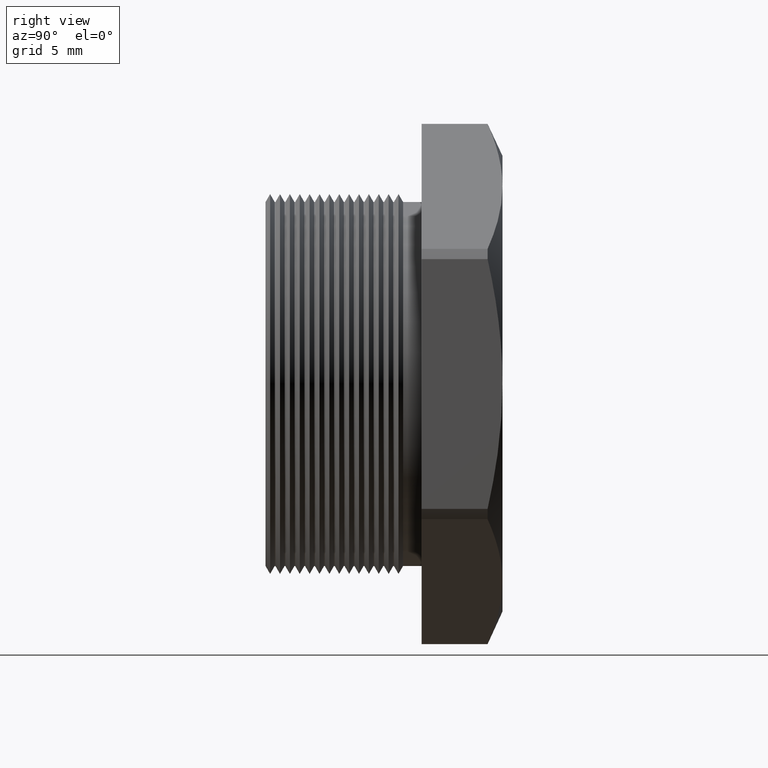
[diagram: clean part render]
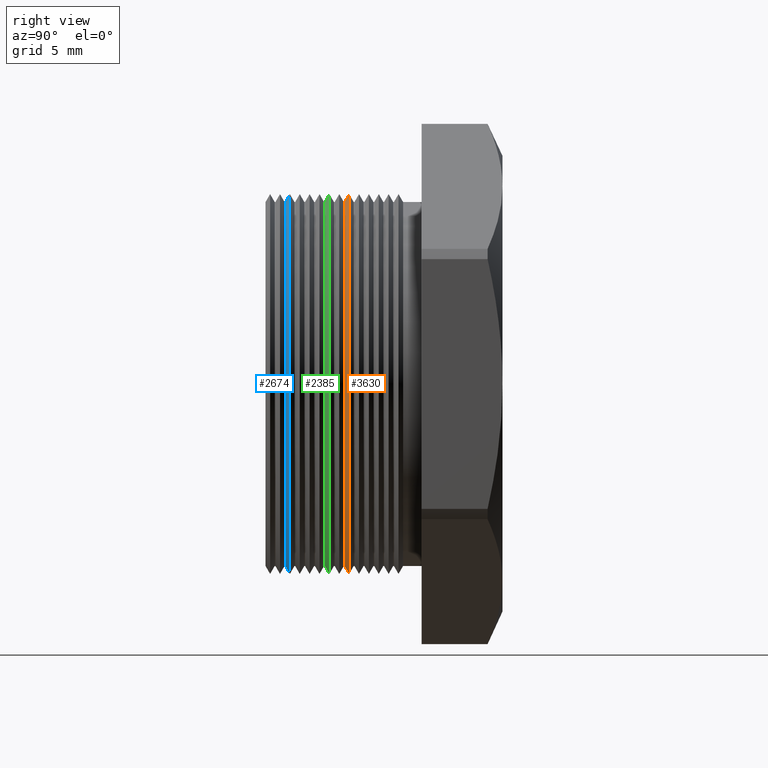
[diagram: same view with three faces highlighted in distinct colors, each labeled with its STEP entity id]
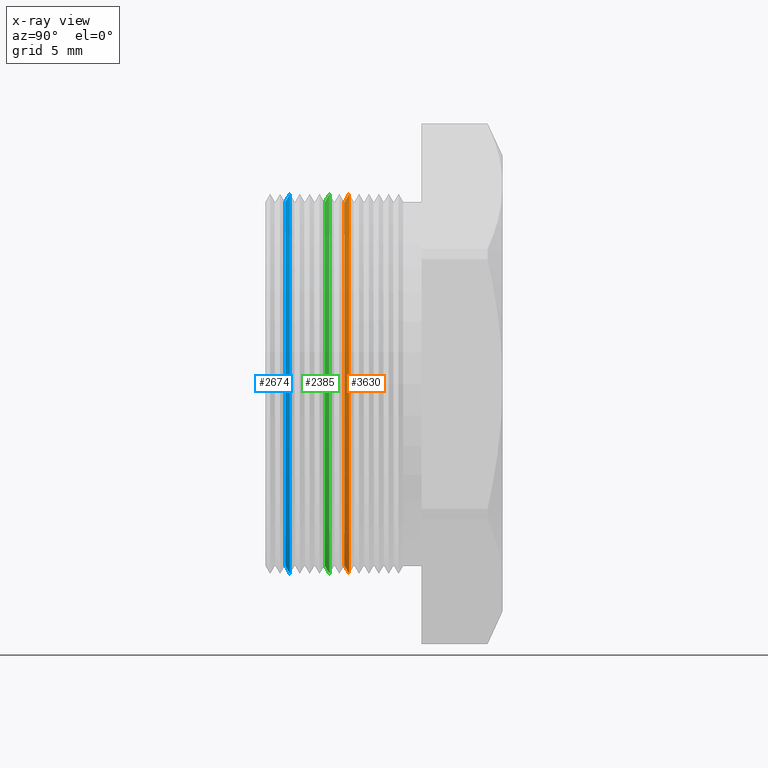
[diagram: x-ray of the same camera — body ghosted, the three highlighted faces saturated]
A machine part, right view with three faces highlighted in distinct colors.
The next image is the same camera in x-ray (body ghosted, the three faces saturated) — at least one of them is partly hidden behind the body in this view.
Their STEP definitions:

[orange] entity #3630 — the highlighted conical surface has half-angle 60 deg.
#1308 = CIRCLE ( 'NONE', #1313, 0.3150000000000000000 ) ;
#1309 = DIRECTION ( 'NONE',  ( 0.0000000000000000000, 0.0000000000000000000, 1.000000000000000000 ) ) ;
#1310 = DIRECTION ( 'NONE',  ( -0.0000000000000000000, 1.000000000000000000, -0.0000000000000000000 ) ) ;
#1311 = CARTESIAN_POINT ( 'NONE',  ( 0.0000000000000000000, 0.1420548905829480100, 0.0000000000000000000 ) ) ;
#1312 = AXIS2_PLACEMENT_3D ( 'NONE', #1311, #1310, #1309 ) ;
#1313 = AXIS2_PLACEMENT_3D ( 'NONE', #1372, #1371, #1370 ) ;
#1314 = CONICAL_SURFACE ( 'NONE', #1312, 0.3287738815610546400, 1.047197551196596700 ) ;
#1315 = FACE_OUTER_BOUND ( 'NONE', #3629, .T. ) ;
#1320 = CARTESIAN_POINT ( 'NONE',  ( 3.857637417314162700E-017, 0.1341025363558870600, 0.3150000000000000000 ) ) ;
#1321 = CARTESIAN_POINT ( 'NONE',  ( 0.0000000000000000000, 0.1341025363558870600, -0.3150000000000000000 ) ) ;
#1322 = CARTESIAN_POINT ( 'NONE',  ( 0.0000000000000000000, 0.1420548905829480100, -0.3287738815610546400 ) ) ;
#1323 = DIRECTION ( 'NONE',  ( 0.0000000000000000000, 0.0000000000000000000, 1.000000000000000000 ) ) ;
#1324 = DIRECTION ( 'NONE',  ( -0.0000000000000000000, 1.000000000000000000, -0.0000000000000000000 ) ) ;
#1325 = CARTESIAN_POINT ( 'NONE',  ( 0.0000000000000000000, 0.1420548905829480100, 0.0000000000000000000 ) ) ;
#1326 = AXIS2_PLACEMENT_3D ( 'NONE', #1325, #1324, #1323 ) ;
#1327 = CIRCLE ( 'NONE', #1326, 0.3287738815610546400 ) ;
#1328 = DIRECTION ( 'NONE',  ( 1.060575238724906300E-016, 0.5000000000000008900, -0.8660254037844380400 ) ) ;
#1329 = VECTOR ( 'NONE', #1328, 39.37007874015748100 ) ;
#1330 = CARTESIAN_POINT ( 'NONE',  ( 4.026318816969965600E-017, 0.1420548905829480100, -0.3287738815610546400 ) ) ;
#1331 = LINE ( 'NONE', #1330, #1329 ) ;
#1339 = CARTESIAN_POINT ( 'NONE',  ( 4.026318816969966200E-017, 0.1420548905829480100, 0.3287738815610546400 ) ) ;
#1362 = DIRECTION ( 'NONE',  ( 0.0000000000000000000, 0.5000000000000008900, 0.8660254037844380400 ) ) ;
#1363 = VECTOR ( 'NONE', #1362, 39.37007874015748100 ) ;
#1364 = CARTESIAN_POINT ( 'NONE',  ( 0.0000000000000000000, 0.1420548905829480100, 0.3287738815610546400 ) ) ;
#1365 = LINE ( 'NONE', #1364, #1363 ) ;
#1370 = DIRECTION ( 'NONE',  ( 0.0000000000000000000, 0.0000000000000000000, 1.000000000000000000 ) ) ;
#1371 = DIRECTION ( 'NONE',  ( -0.0000000000000000000, 1.000000000000000000, -0.0000000000000000000 ) ) ;
#1372 = CARTESIAN_POINT ( 'NONE',  ( 0.0000000000000000000, 0.1341025363558870600, 0.0000000000000000000 ) ) ;
#3613 = VERTEX_POINT ( 'NONE', #1339 ) ;
#3614 = ORIENTED_EDGE ( 'NONE', *, *, #3619, .F. ) ;
#3616 = EDGE_CURVE ( 'NONE', #3622, #3621, #1331, .T. ) ;
#3618 = ORIENTED_EDGE ( 'NONE', *, *, #3616, .T. ) ;
#3619 = EDGE_CURVE ( 'NONE', #3613, #3621, #1327, .T. ) ;
#3621 = VERTEX_POINT ( 'NONE', #1322 ) ;
#3622 = VERTEX_POINT ( 'NONE', #1321 ) ;
#3624 = VERTEX_POINT ( 'NONE', #1320 ) ;
#3629 = EDGE_LOOP ( 'NONE', ( #3631, #3618, #3614, #3646 ) ) ;
#3630 = ADVANCED_FACE ( 'NONE', ( #1315 ), #1314, .T. ) ;
#3631 = ORIENTED_EDGE ( 'NONE', *, *, #3632, .T. ) ;
#3632 = EDGE_CURVE ( 'NONE', #3624, #3622, #1308, .T. ) ;
#3635 = EDGE_CURVE ( 'NONE', #3624, #3613, #1365, .T. ) ;
#3646 = ORIENTED_EDGE ( 'NONE', *, *, #3635, .F. ) ;

[blue] entity #2674 — the highlighted conical surface has half-angle 60 deg.
#2661 = EDGE_CURVE ( 'NONE', #2681, #2668, #5385, .T. ) ;
#2664 = ORIENTED_EDGE ( 'NONE', *, *, #2661, .F. ) ;
#2668 = VERTEX_POINT ( 'NONE', #5436 ) ;
#2674 = ADVANCED_FACE ( 'NONE', ( #5421 ), #5419, .T. ) ;
#2675 = EDGE_LOOP ( 'NONE', ( #2676, #2686, #2680, #2664 ) ) ;
#2676 = ORIENTED_EDGE ( 'NONE', *, *, #2677, .T. ) ;
#2677 = EDGE_CURVE ( 'NONE', #2681, #2684, #5415, .T. ) ;
#2679 = VERTEX_POINT ( 'NONE', #5406 ) ;
#2680 = ORIENTED_EDGE ( 'NONE', *, *, #2687, .F. ) ;
#2681 = VERTEX_POINT ( 'NONE', #5405 ) ;
#2684 = VERTEX_POINT ( 'NONE', #5404 ) ;
#2685 = EDGE_CURVE ( 'NONE', #2684, #2679, #3906, .T. ) ;
#2686 = ORIENTED_EDGE ( 'NONE', *, *, #2685, .T. ) ;
#2687 = EDGE_CURVE ( 'NONE', #2668, #2679, #5465, .T. ) ;
#3906 = LINE ( 'NONE', #4661, #4909 ) ;
#4661 = CARTESIAN_POINT ( 'NONE',  ( 4.026318816969965600E-017, 0.03945489058294801600, -0.3287738815610546400 ) ) ;
#4909 = VECTOR ( 'NONE', #5155, 39.37007874015748100 ) ;
#5155 = DIRECTION ( 'NONE',  ( 1.060575238724906300E-016, 0.5000000000000008900, -0.8660254037844380400 ) ) ;
#5382 = DIRECTION ( 'NONE',  ( 0.0000000000000000000, 0.5000000000000008900, 0.8660254037844380400 ) ) ;
#5383 = VECTOR ( 'NONE', #5382, 39.37007874015748100 ) ;
#5384 = CARTESIAN_POINT ( 'NONE',  ( 0.0000000000000000000, 0.03945489058294801600, 0.3287738815610546400 ) ) ;
#5385 = LINE ( 'NONE', #5384, #5383 ) ;
#5404 = CARTESIAN_POINT ( 'NONE',  ( 0.0000000000000000000, 0.03150253635588707400, -0.3150000000000000000 ) ) ;
#5405 = CARTESIAN_POINT ( 'NONE',  ( 3.857637417314162700E-017, 0.03150253635588707400, 0.3150000000000000000 ) ) ;
#5406 = CARTESIAN_POINT ( 'NONE',  ( 0.0000000000000000000, 0.03945489058294801600, -0.3287738815610546400 ) ) ;
#5411 = DIRECTION ( 'NONE',  ( 0.0000000000000000000, 0.0000000000000000000, 1.000000000000000000 ) ) ;
#5412 = DIRECTION ( 'NONE',  ( -0.0000000000000000000, 1.000000000000000000, -0.0000000000000000000 ) ) ;
#5413 = CARTESIAN_POINT ( 'NONE',  ( 0.0000000000000000000, 0.03150253635588707400, 0.0000000000000000000 ) ) ;
#5414 = AXIS2_PLACEMENT_3D ( 'NONE', #5413, #5412, #5411 ) ;
#5415 = CIRCLE ( 'NONE', #5414, 0.3150000000000000000 ) ;
#5416 = DIRECTION ( 'NONE',  ( 0.0000000000000000000, 0.0000000000000000000, 1.000000000000000000 ) ) ;
#5417 = DIRECTION ( 'NONE',  ( -0.0000000000000000000, 1.000000000000000000, -0.0000000000000000000 ) ) ;
#5418 = AXIS2_PLACEMENT_3D ( 'NONE', #5420, #5417, #5416 ) ;
#5419 = CONICAL_SURFACE ( 'NONE', #5418, 0.3287738815610546400, 1.047197551196596700 ) ;
#5420 = CARTESIAN_POINT ( 'NONE',  ( 0.0000000000000000000, 0.03945489058294801600, 0.0000000000000000000 ) ) ;
#5421 = FACE_OUTER_BOUND ( 'NONE', #2675, .T. ) ;
#5436 = CARTESIAN_POINT ( 'NONE',  ( 4.026318816969966200E-017, 0.03945489058294801600, 0.3287738815610546400 ) ) ;
#5461 = DIRECTION ( 'NONE',  ( 0.0000000000000000000, 0.0000000000000000000, 1.000000000000000000 ) ) ;
#5462 = DIRECTION ( 'NONE',  ( -0.0000000000000000000, 1.000000000000000000, -0.0000000000000000000 ) ) ;
#5463 = CARTESIAN_POINT ( 'NONE',  ( 0.0000000000000000000, 0.03945489058294801600, 0.0000000000000000000 ) ) ;
#5464 = AXIS2_PLACEMENT_3D ( 'NONE', #5463, #5462, #5461 ) ;
#5465 = CIRCLE ( 'NONE', #5464, 0.3287738815610546400 ) ;

[green] entity #2385 — the highlighted conical surface has half-angle 60 deg.
#1545 = VERTEX_POINT ( 'NONE', #4949 ) ;
#1568 = EDGE_LOOP ( 'NONE', ( #1837, #2521, #2505, #2515 ) ) ;
#1829 = EDGE_CURVE ( 'NONE', #1545, #2526, #4982, .T. ) ;
#1837 = ORIENTED_EDGE ( 'NONE', *, *, #1829, .T. ) ;
#2385 = ADVANCED_FACE ( 'NONE', ( #5018 ), #5012, .T. ) ;
#2505 = ORIENTED_EDGE ( 'NONE', *, *, #2514, .F. ) ;
#2512 = EDGE_CURVE ( 'NONE', #1545, #2513, #5097, .T. ) ;
#2513 = VERTEX_POINT ( 'NONE', #5093 ) ;
#2514 = EDGE_CURVE ( 'NONE', #2513, #2519, #5153, .T. ) ;
#2515 = ORIENTED_EDGE ( 'NONE', *, *, #2512, .F. ) ;
#2519 = VERTEX_POINT ( 'NONE', #5144 ) ;
#2521 = ORIENTED_EDGE ( 'NONE', *, *, #2529, .T. ) ;
#2526 = VERTEX_POINT ( 'NONE', #5136 ) ;
#2529 = EDGE_CURVE ( 'NONE', #2526, #2519, #5131, .T. ) ;
#4949 = CARTESIAN_POINT ( 'NONE',  ( 3.857637417314162700E-017, 0.09990253635588707000, 0.3150000000000000000 ) ) ;
#4978 = DIRECTION ( 'NONE',  ( 0.0000000000000000000, 0.0000000000000000000, 1.000000000000000000 ) ) ;
#4979 = DIRECTION ( 'NONE',  ( -0.0000000000000000000, 1.000000000000000000, -0.0000000000000000000 ) ) ;
#4980 = CARTESIAN_POINT ( 'NONE',  ( 0.0000000000000000000, 0.09990253635588707000, 0.0000000000000000000 ) ) ;
#4981 = AXIS2_PLACEMENT_3D ( 'NONE', #4980, #4979, #4978 ) ;
#4982 = CIRCLE ( 'NONE', #4981, 0.3150000000000000000 ) ;
#5008 = DIRECTION ( 'NONE',  ( 0.0000000000000000000, 0.0000000000000000000, 1.000000000000000000 ) ) ;
#5009 = DIRECTION ( 'NONE',  ( -0.0000000000000000000, 1.000000000000000000, -0.0000000000000000000 ) ) ;
#5010 = CARTESIAN_POINT ( 'NONE',  ( 0.0000000000000000000, 0.1078548905829480200, 0.0000000000000000000 ) ) ;
#5011 = AXIS2_PLACEMENT_3D ( 'NONE', #5010, #5009, #5008 ) ;
#5012 = CONICAL_SURFACE ( 'NONE', #5011, 0.3287738815610546400, 1.047197551196596700 ) ;
#5018 = FACE_OUTER_BOUND ( 'NONE', #1568, .T. ) ;
#5093 = CARTESIAN_POINT ( 'NONE',  ( 4.026318816969966200E-017, 0.1078548905829480200, 0.3287738815610546400 ) ) ;
#5094 = DIRECTION ( 'NONE',  ( 0.0000000000000000000, 0.5000000000000008900, 0.8660254037844380400 ) ) ;
#5095 = VECTOR ( 'NONE', #5094, 39.37007874015748100 ) ;
#5096 = CARTESIAN_POINT ( 'NONE',  ( 0.0000000000000000000, 0.1078548905829480200, 0.3287738815610546400 ) ) ;
#5097 = LINE ( 'NONE', #5096, #5095 ) ;
#5128 = DIRECTION ( 'NONE',  ( 1.060575238724906300E-016, 0.5000000000000008900, -0.8660254037844380400 ) ) ;
#5129 = VECTOR ( 'NONE', #5128, 39.37007874015748100 ) ;
#5130 = CARTESIAN_POINT ( 'NONE',  ( 4.026318816969965600E-017, 0.1078548905829480200, -0.3287738815610546400 ) ) ;
#5131 = LINE ( 'NONE', #5130, #5129 ) ;
#5136 = CARTESIAN_POINT ( 'NONE',  ( 0.0000000000000000000, 0.09990253635588707000, -0.3150000000000000000 ) ) ;
#5144 = CARTESIAN_POINT ( 'NONE',  ( 0.0000000000000000000, 0.1078548905829480200, -0.3287738815610546400 ) ) ;
#5149 = DIRECTION ( 'NONE',  ( 0.0000000000000000000, 0.0000000000000000000, 1.000000000000000000 ) ) ;
#5150 = DIRECTION ( 'NONE',  ( -0.0000000000000000000, 1.000000000000000000, -0.0000000000000000000 ) ) ;
#5151 = CARTESIAN_POINT ( 'NONE',  ( 0.0000000000000000000, 0.1078548905829480200, 0.0000000000000000000 ) ) ;
#5152 = AXIS2_PLACEMENT_3D ( 'NONE', #5151, #5150, #5149 ) ;
#5153 = CIRCLE ( 'NONE', #5152, 0.3287738815610546400 ) ;